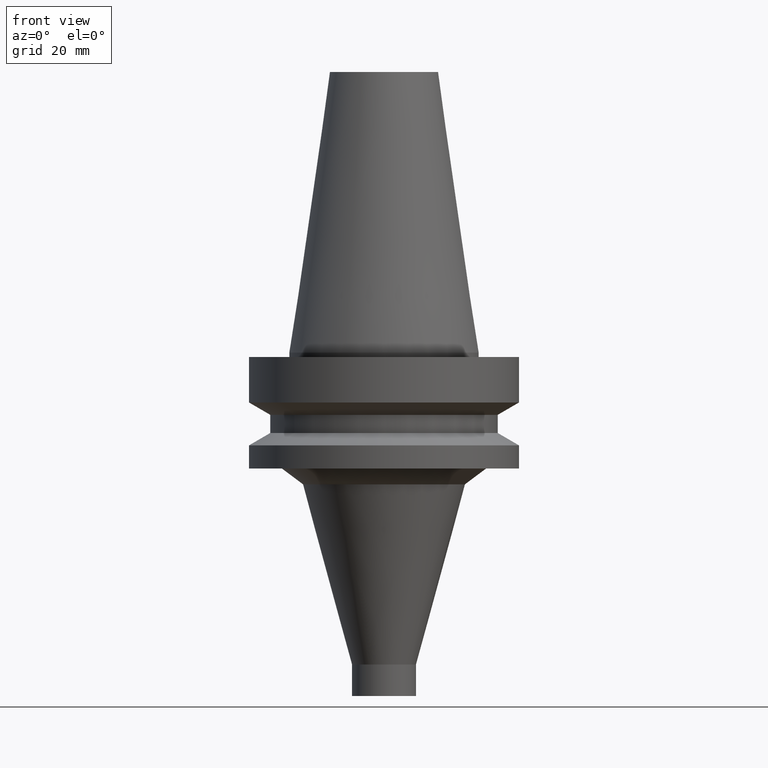
[diagram: clean part render]
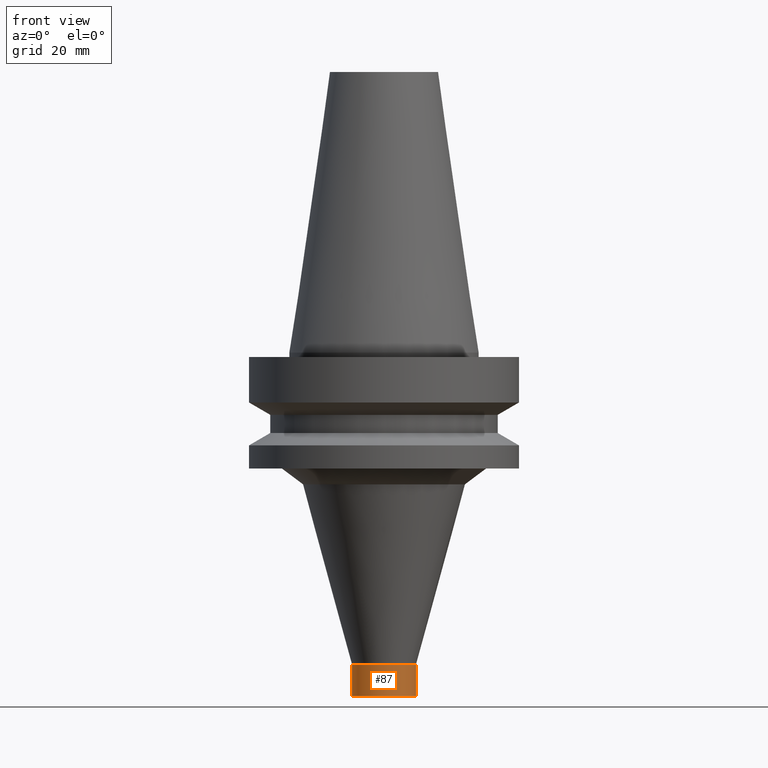
[diagram: same view with one face highlighted and labeled with its STEP entity id]
A machine part, front view. The second image highlights one B-rep face of the part: STEP entity #87.
In plain terms, the highlighted cylindrical surface (bore or boss wall) has radius 7.5 mm, axis along (-0, -0, 1).
Its self-contained STEP definition (entity closure, byte-faithful):
#87=ADVANCED_FACE('',(#125,#126),#127,.T.);
#125=FACE_BOUND('',#165,.T.);
#126=FACE_BOUND('',#166,.T.);
#127=CYLINDRICAL_SURFACE('',#167,7.5);
#165=EDGE_LOOP('',(#229));
#166=EDGE_LOOP('',(#230));
#167=AXIS2_PLACEMENT_3D('',#231,#232,#233);
#229=ORIENTED_EDGE('',*,*,#250,.F.);
#230=ORIENTED_EDGE('',*,*,#249,.T.);
#231=CARTESIAN_POINT('',(4.67362490404416E-015,9.34724980808833E-015,-76.326086955));
#232=DIRECTION('',(-6.12323399573677E-017,-1.22464679914735E-016,1.0));
#233=DIRECTION('',(-1.23259516440783E-032,1.0,1.22464679914735E-016));
#249=EDGE_CURVE('',#273,#273,#274,.T.);
#250=EDGE_CURVE('',#275,#275,#276,.T.);
#273=VERTEX_POINT('',#299);
#274=CIRCLE('',#300,7.5);
#275=VERTEX_POINT('',#301);
#276=CIRCLE('',#302,7.5);
#299=CARTESIAN_POINT('',(4.44866261149892E-015,7.50000000000001,-72.65217391));
#300=AXIS2_PLACEMENT_3D('',#336,#337,#338);
#301=CARTESIAN_POINT('',(4.89858719658941E-015,7.50000000000001,-80.0));
#302=AXIS2_PLACEMENT_3D('',#339,#340,#341);
#336=CARTESIAN_POINT('',(4.44866261149892E-015,8.89732522299783E-015,-72.65217391));
#337=DIRECTION('',(6.12323399573677E-017,1.22464679914735E-016,-1.0));
#338=DIRECTION('',(-1.23259516440783E-032,1.0,1.22464679914735E-016));
#339=CARTESIAN_POINT('',(4.89858719658941E-015,9.79717439317882E-015,-80.0));
#340=DIRECTION('',(6.12323399573677E-017,1.22464679914735E-016,-1.0));
#341=DIRECTION('',(-1.23259516440783E-032,1.0,1.22464679914735E-016));